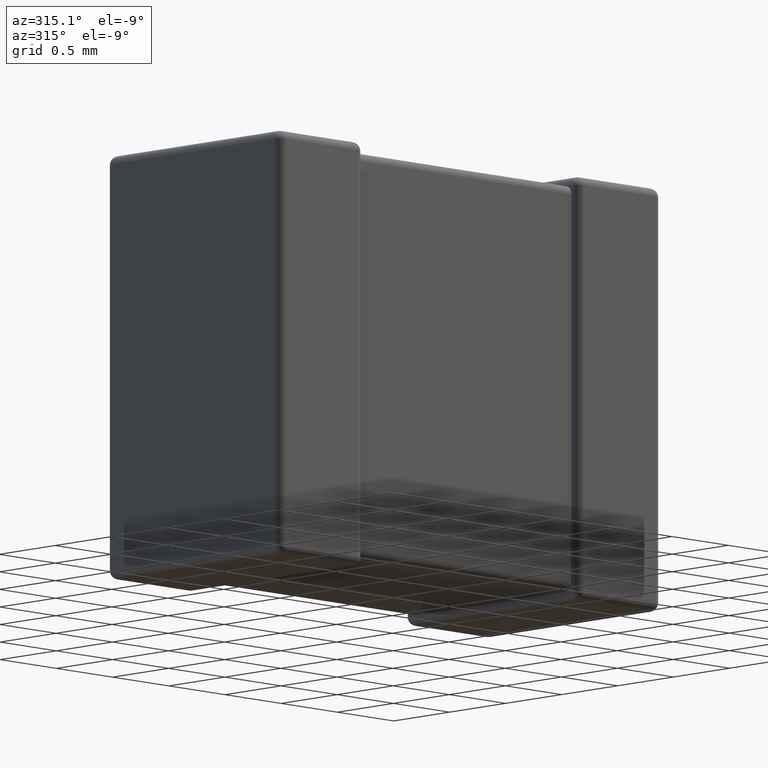
[diagram: clean part render]
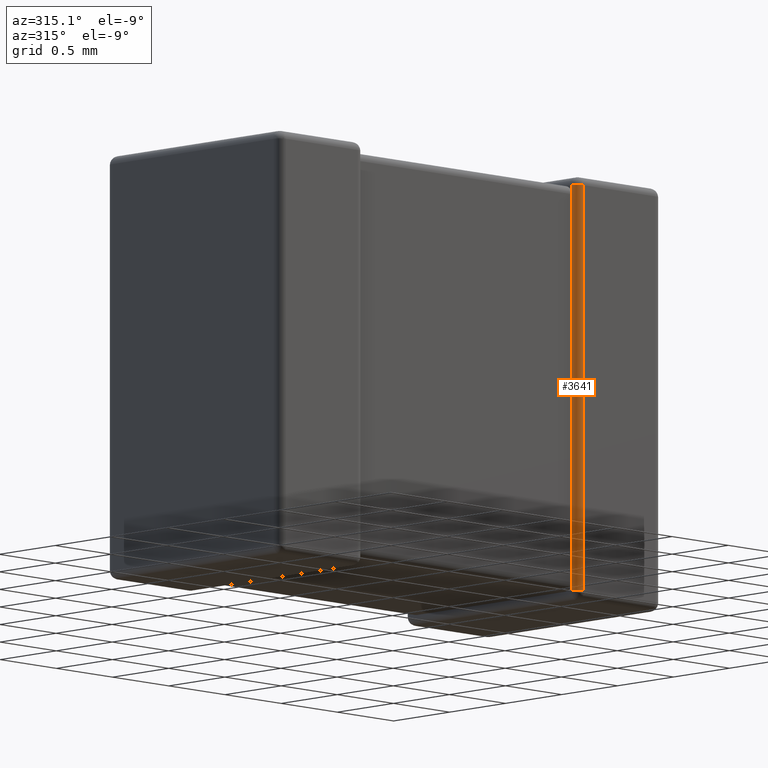
[diagram: same view with one face highlighted and labeled with its STEP entity id]
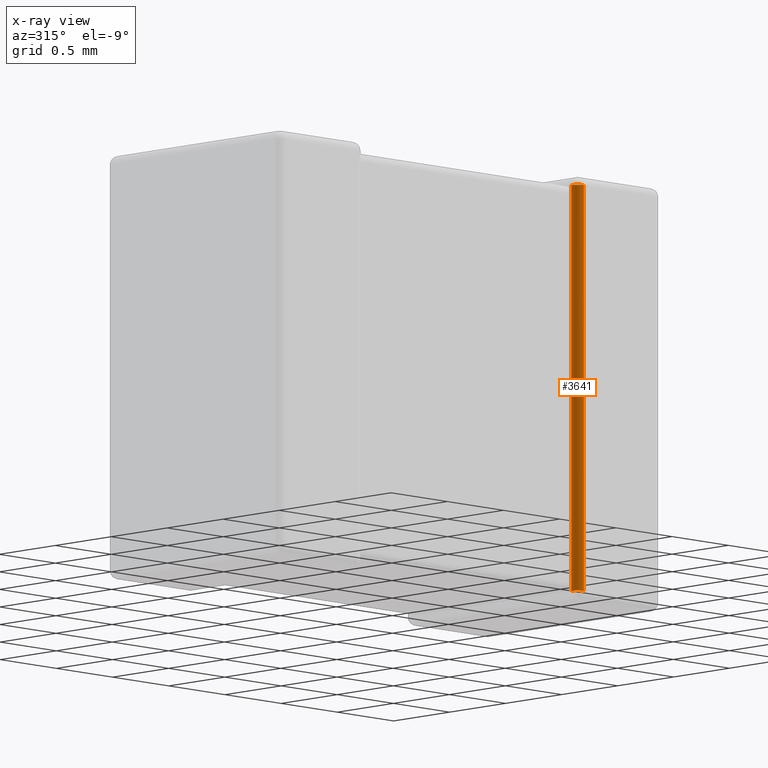
[diagram: x-ray of the same camera — body ghosted, the highlighted face saturated]
A machine part, auxiliary view. The second image highlights one B-rep face of the part: STEP entity #3641.
The next image is the same camera in x-ray: the body ghosted, the highlighted face saturated — about 0% of this face is hidden behind the body in this view.
In plain terms, the highlighted cylindrical surface (edge-blend (fillet) strip) has radius 0.0562 mm, axis along (0, 0, -1).
Its self-contained STEP definition (entity closure, byte-faithful):
#128 = VECTOR ( 'NONE', #1943, 1000.000000000000000 ) ;
#248 = CARTESIAN_POINT ( 'NONE',  ( 2.706160000000000565, 0.000000000000000000, -0.05616000000000000159 ) ) ;
#266 = EDGE_CURVE ( 'NONE', #1206, #2635, #3191, .T. ) ;
#331 = CIRCLE ( 'NONE', #3515, 0.05615999999999997383 ) ;
#413 = CARTESIAN_POINT ( 'NONE',  ( 2.706160000000000565, 0.000000000000000000, 0.000000000000000000 ) ) ;
#977 = LINE ( 'NONE', #3520, #2346 ) ;
#1028 = CARTESIAN_POINT ( 'NONE',  ( 2.706160000000000565, 0.05616000000000000159, 0.000000000000000000 ) ) ;
#1206 = VERTEX_POINT ( 'NONE', #248 ) ;
#1357 = VECTOR ( 'NONE', #3753, 1000.000000000000000 ) ;
#1396 = ORIENTED_EDGE ( 'NONE', *, *, #1593, .F. ) ;
#1434 = DIRECTION ( 'NONE',  ( 0.000000000000000000, 0.000000000000000000, -1.000000000000000000 ) ) ;
#1504 = EDGE_CURVE ( 'NONE', #1728, #3071, #1663, .T. ) ;
#1582 = ORIENTED_EDGE ( 'NONE', *, *, #4219, .T. ) ;
#1593 = EDGE_CURVE ( 'NONE', #1728, #4253, #977, .T. ) ;
#1663 = LINE ( 'NONE', #3494, #1357 ) ;
#1728 = VERTEX_POINT ( 'NONE', #3415 ) ;
#1882 = ORIENTED_EDGE ( 'NONE', *, *, #1504, .T. ) ;
#1943 = DIRECTION ( 'NONE',  ( 0.000000000000000000, 0.000000000000000000, -1.000000000000000000 ) ) ;
#1958 = CARTESIAN_POINT ( 'NONE',  ( 2.650000000000000355, 0.05615999999999997383, -0.05615999999999997383 ) ) ;
#2145 = FACE_OUTER_BOUND ( 'NONE', #3970, .T. ) ;
#2153 = VERTEX_POINT ( 'NONE', #3934 ) ;
#2210 = EDGE_CURVE ( 'NONE', #1206, #2153, #3570, .T. ) ;
#2346 = VECTOR ( 'NONE', #2490, 1000.000000000000000 ) ;
#2418 = ORIENTED_EDGE ( 'NONE', *, *, #3058, .T. ) ;
#2484 = CARTESIAN_POINT ( 'NONE',  ( 2.706160000000000565, 0.05616000000000000159, -2.643839999999999968 ) ) ;
#2490 = DIRECTION ( 'NONE',  ( -0.000000000000000000, -0.000000000000000000, 1.000000000000000000 ) ) ;
#2521 = DIRECTION ( 'NONE',  ( -1.000000000000000000, 0.000000000000000000, 0.000000000000000000 ) ) ;
#2541 = ORIENTED_EDGE ( 'NONE', *, *, #2210, .F. ) ;
#2635 = VERTEX_POINT ( 'NONE', #1958 ) ;
#2923 = DIRECTION ( 'NONE',  ( -1.000000000000000000, -8.446197479743739643E-16, 0.000000000000000000 ) ) ;
#3058 = EDGE_CURVE ( 'NONE', #3071, #2153, #331, .T. ) ;
#3071 = VERTEX_POINT ( 'NONE', #3239 ) ;
#3191 = CIRCLE ( 'NONE', #3577, 0.05616000000000000159 ) ;
#3239 = CARTESIAN_POINT ( 'NONE',  ( 2.650000000000000355, 0.05615999999999997383, -2.643839999999999968 ) ) ;
#3415 = CARTESIAN_POINT ( 'NONE',  ( 2.650000000000000355, 0.05615999999999997383, -2.587680000000000202 ) ) ;
#3423 = CARTESIAN_POINT ( 'NONE',  ( 2.650000000000000355, 0.05616000000000000159, 0.000000000000000000 ) ) ;
#3426 = DIRECTION ( 'NONE',  ( -0.000000000000000000, 4.826398559853563115E-16, -1.000000000000000000 ) ) ;
#3494 = CARTESIAN_POINT ( 'NONE',  ( 2.650000000000000355, 0.05616000000000000159, 0.000000000000000000 ) ) ;
#3515 = AXIS2_PLACEMENT_3D ( 'NONE', #2484, #4037, #2923 ) ;
#3520 = CARTESIAN_POINT ( 'NONE',  ( 2.650000000000000355, 0.05615999999999997383, -2.700000000000000178 ) ) ;
#3560 = DIRECTION ( 'NONE',  ( 0.000000000000000000, 0.000000000000000000, -1.000000000000000000 ) ) ;
#3570 = LINE ( 'NONE', #413, #4030 ) ;
#3577 = AXIS2_PLACEMENT_3D ( 'NONE', #4510, #3426, #4095 ) ;
#3641 = ADVANCED_FACE ( 'NONE', ( #2145 ), #4325, .T. ) ;
#3753 = DIRECTION ( 'NONE',  ( 0.000000000000000000, 0.000000000000000000, -1.000000000000000000 ) ) ;
#3877 = ORIENTED_EDGE ( 'NONE', *, *, #266, .T. ) ;
#3934 = CARTESIAN_POINT ( 'NONE',  ( 2.706160000000000565, 0.000000000000000000, -2.643839999999999968 ) ) ;
#3960 = AXIS2_PLACEMENT_3D ( 'NONE', #1028, #3560, #2521 ) ;
#3970 = EDGE_LOOP ( 'NONE', ( #3877, #1582, #1396, #1882, #2418, #2541 ) ) ;
#4030 = VECTOR ( 'NONE', #1434, 1000.000000000000000 ) ;
#4037 = DIRECTION ( 'NONE',  ( 0.000000000000000000, 0.000000000000000000, 1.000000000000000000 ) ) ;
#4072 = LINE ( 'NONE', #3423, #128 ) ;
#4095 = DIRECTION ( 'NONE',  ( 0.000000000000000000, -1.000000000000000000, -4.826398559853563115E-16 ) ) ;
#4219 = EDGE_CURVE ( 'NONE', #2635, #4253, #4072, .T. ) ;
#4253 = VERTEX_POINT ( 'NONE', #4459 ) ;
#4325 = CYLINDRICAL_SURFACE ( 'NONE', #3960, 0.05615999999999997383 ) ;
#4459 = CARTESIAN_POINT ( 'NONE',  ( 2.650000000000000355, 0.05615999999999997383, -0.1123199999999999477 ) ) ;
#4510 = CARTESIAN_POINT ( 'NONE',  ( 2.706160000000000565, 0.05616000000000000159, -0.05615999999999997383 ) ) ;